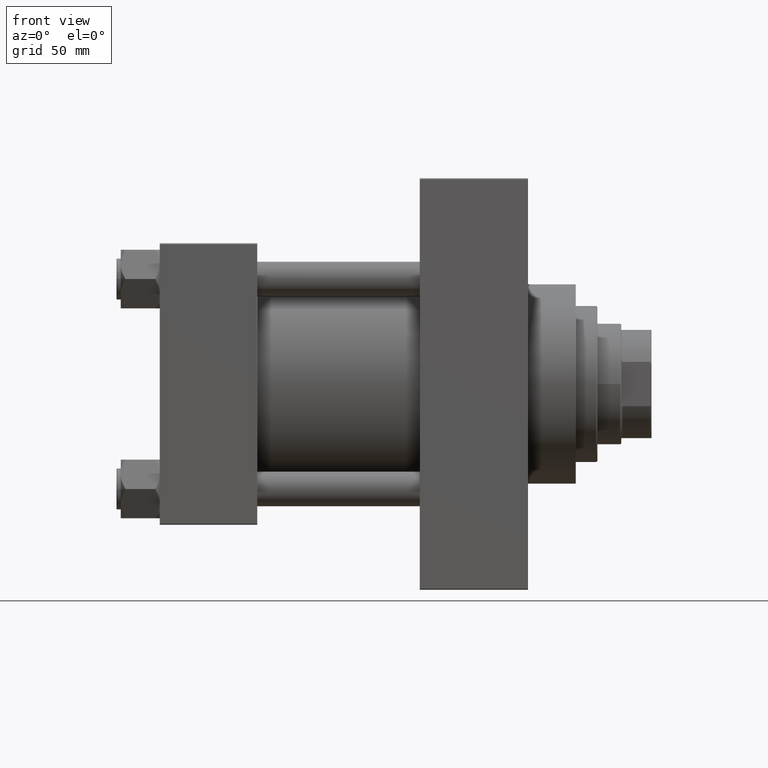
[diagram: clean part render]
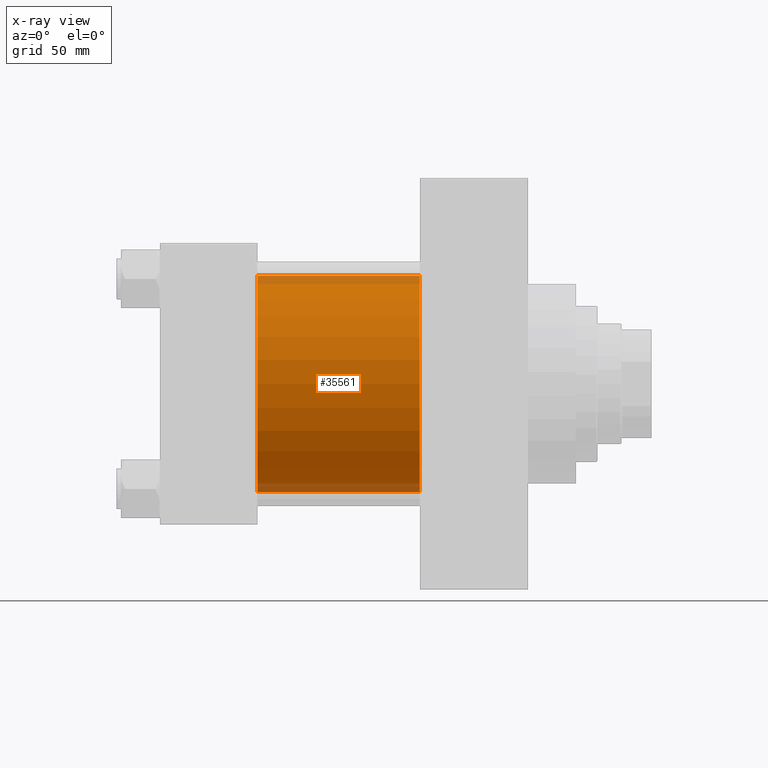
[diagram: x-ray — body ghosted, one internal face saturated and labeled with its STEP entity id]
A machine part, front view, then the same camera in x-ray: the body is ghosted and one INTERNAL B-rep face — a face not visible from any outside direction — is saturated and labeled: STEP entity #35561.
In plain terms, the highlighted cylindrical surface (partial cylindrical patch) has radius 50 mm, axis along (-1, -0, -0).
Its self-contained STEP definition (entity closure, byte-faithful):
#957 = FACE_OUTER_BOUND ( 'NONE', #47528, .T. ) ;
#2517 = DIRECTION ( 'NONE',  ( 1.000000000000000000, 0.000000000000000000, 0.000000000000000000 ) ) ;
#2728 = VECTOR ( 'NONE', #17958, 1000.000000000000000 ) ;
#4390 = VERTEX_POINT ( 'NONE', #47116 ) ;
#4426 = CARTESIAN_POINT ( 'NONE',  ( 120.0000000000000000, -2.602085213965210642E-15, 0.000000000000000000 ) ) ;
#4840 = DIRECTION ( 'NONE',  ( -1.000000000000000000, -0.000000000000000000, -0.000000000000000000 ) ) ;
#4899 = DIRECTION ( 'NONE',  ( 0.000000000000000000, 0.000000000000000000, -1.000000000000000000 ) ) ;
#7554 = EDGE_CURVE ( 'NONE', #47642, #4390, #23229, .T. ) ;
#9535 = AXIS2_PLACEMENT_3D ( 'NONE', #41514, #4840, #42700 ) ;
#10235 = LINE ( 'NONE', #21560, #2728 ) ;
#10426 = VECTOR ( 'NONE', #15759, 1000.000000000000000 ) ;
#12157 = DIRECTION ( 'NONE',  ( 1.000000000000000000, 0.000000000000000000, 0.000000000000000000 ) ) ;
#15716 = CYLINDRICAL_SURFACE ( 'NONE', #9535, 50.00000000000000000 ) ;
#15759 = DIRECTION ( 'NONE',  ( -1.000000000000000000, -0.000000000000000000, -0.000000000000000000 ) ) ;
#16091 = EDGE_CURVE ( 'NONE', #35595, #47642, #18284, .T. ) ;
#17958 = DIRECTION ( 'NONE',  ( -1.000000000000000000, -0.000000000000000000, -0.000000000000000000 ) ) ;
#18284 = CIRCLE ( 'NONE', #44468, 50.00000000000000000 ) ;
#18964 = EDGE_CURVE ( 'NONE', #23227, #4390, #31455, .T. ) ;
#19927 = DIRECTION ( 'NONE',  ( 0.000000000000000000, 0.000000000000000000, -1.000000000000000000 ) ) ;
#21560 = CARTESIAN_POINT ( 'NONE',  ( 120.0000000000000000, -2.602085213965210642E-15, 50.00000000000000000 ) ) ;
#23227 = VERTEX_POINT ( 'NONE', #41891 ) ;
#23229 = LINE ( 'NONE', #42039, #10426 ) ;
#24440 = ORIENTED_EDGE ( 'NONE', *, *, #40419, .F. ) ;
#28474 = ORIENTED_EDGE ( 'NONE', *, *, #18964, .F. ) ;
#31403 = ORIENTED_EDGE ( 'NONE', *, *, #7554, .T. ) ;
#31455 = CIRCLE ( 'NONE', #37598, 50.00000000000000000 ) ;
#33775 = ORIENTED_EDGE ( 'NONE', *, *, #16091, .T. ) ;
#35561 = ADVANCED_FACE ( 'NONE', ( #957 ), #15716, .F. ) ;
#35595 = VERTEX_POINT ( 'NONE', #38612 ) ;
#37598 = AXIS2_PLACEMENT_3D ( 'NONE', #46695, #2517, #19927 ) ;
#38612 = CARTESIAN_POINT ( 'NONE',  ( 120.0000000000000000, -2.602085213965210642E-15, 50.00000000000000000 ) ) ;
#40419 = EDGE_CURVE ( 'NONE', #35595, #23227, #10235, .T. ) ;
#41514 = CARTESIAN_POINT ( 'NONE',  ( 120.0000000000000000, -2.602085213965210642E-15, 0.000000000000000000 ) ) ;
#41891 = CARTESIAN_POINT ( 'NONE',  ( 45.00000000000000000, -2.602085213965210642E-15, 50.00000000000000000 ) ) ;
#42039 = CARTESIAN_POINT ( 'NONE',  ( 120.0000000000000000, 3.521148781771555838E-15, -50.00000000000000000 ) ) ;
#42700 = DIRECTION ( 'NONE',  ( 0.000000000000000000, 0.000000000000000000, 1.000000000000000000 ) ) ;
#44468 = AXIS2_PLACEMENT_3D ( 'NONE', #4426, #12157, #4899 ) ;
#45506 = CARTESIAN_POINT ( 'NONE',  ( 120.0000000000000000, 3.521148781771555838E-15, -50.00000000000000000 ) ) ;
#46695 = CARTESIAN_POINT ( 'NONE',  ( 45.00000000000000000, -2.602085213965210642E-15, 0.000000000000000000 ) ) ;
#47116 = CARTESIAN_POINT ( 'NONE',  ( 45.00000000000000000, 3.521148781771555838E-15, -50.00000000000000000 ) ) ;
#47528 = EDGE_LOOP ( 'NONE', ( #33775, #31403, #28474, #24440 ) ) ;
#47642 = VERTEX_POINT ( 'NONE', #45506 ) ;